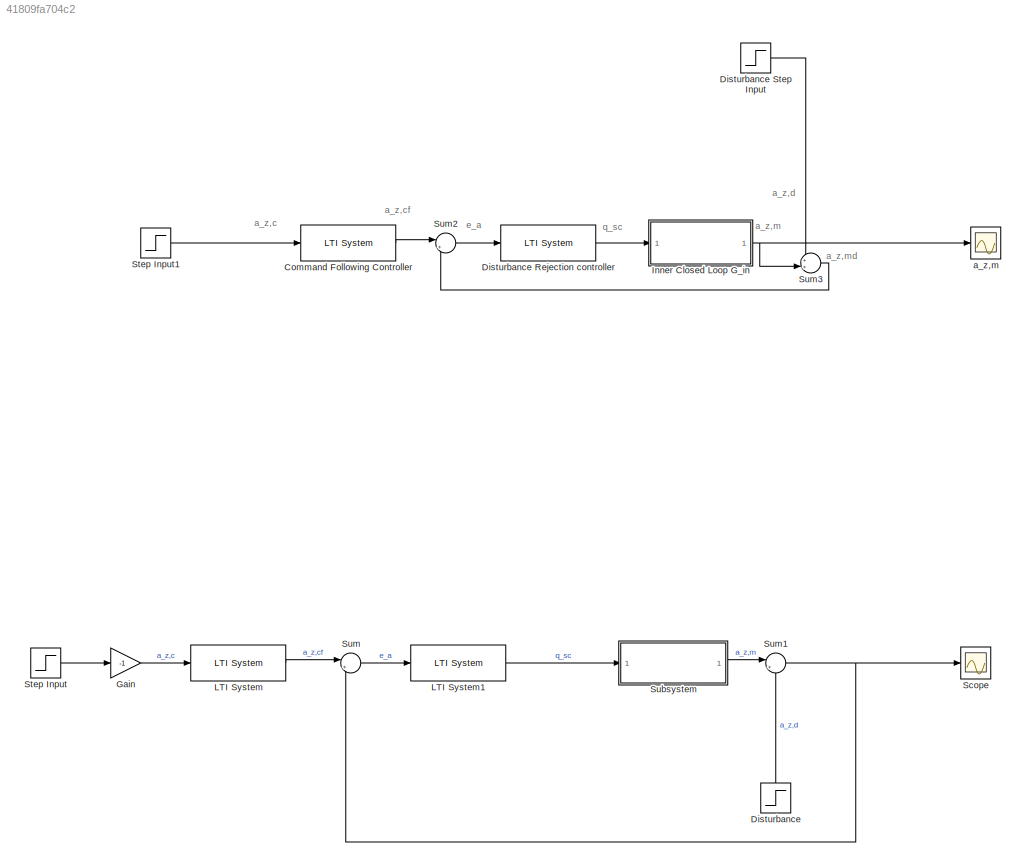
MODEL slx_41809fa704c2
KIND model
CONFIG AbsTol = auto
CONFIG EnableMultiTasking = off
CONFIG FixedStep = auto
CONFIG MaxStep = auto
CONFIG MinStep = auto
CONFIG RelTol = 1e-3
CONFIG SampleTimeConstraint = Unconstrained
CONFIG SolverName = VariableStepAuto
CONFIG StartTime = 0.0
CONFIG StopTime = 10.0
BLOCK [Reference] Command Following Controller  REF=cstblocks/LTI System
  Ports = [1, 1]
  SourceBlock = cstblocks/LTI System
  SourceProductBaseCode = CT
  SourceType = LTI Block
BLOCK [Step] Disturbance
  Commented = on
  NameLocation = right
  SampleTime = 0
BLOCK [Reference] Disturbance Rejection controller  REF=cstblocks/LTI System
  Ports = [1, 1]
  SourceBlock = cstblocks/LTI System
  SourceProductBaseCode = CT
  SourceType = LTI Block
BLOCK [Step] Disturbance Step Input
  After = 0.1
  SampleTime = 0
BLOCK [Gain] Gain
  Commented = on
  Gain = -1
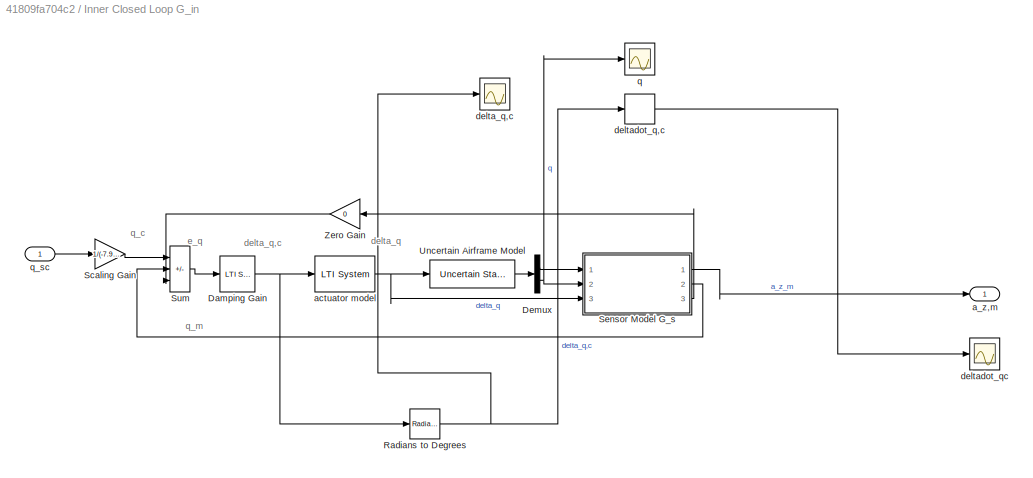
BLOCK [SubSystem] Inner Closed Loop G_in 
  Ports = [1, 1]
  RequestExecContextInheritance = off
BLOCK [Reference] Inner Closed Loop G_in /Damping Gain  REF=cstblocks/LTI System
  Ports = [1, 1]
  SourceBlock = cstblocks/LTI System
  SourceProductBaseCode = CT
  SourceType = LTI Block
BLOCK [Demux] Inner Closed Loop G_in /Demux
  Outputs = 2
  Ports = [1, 2]
BLOCK [Reference] Inner Closed Loop G_in /Radians to Degrees  REF=simulink_extras/Transformations/Radians
to Degrees
  Ports = [1, 1]
  SourceBlock = simulink_extras/Transformations/Radians\nto Degrees
  SourceProductBaseCode = SL
  SourceType = RadiansToDegrees
BLOCK [Gain] Inner Closed Loop G_in /Scaling Gain
  Gain = 1/(-7.9849)
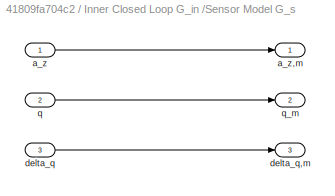
BLOCK [SubSystem] Inner Closed Loop G_in /Sensor Model G_s
  Ports = [3, 3]
  RequestExecContextInheritance = off
BLOCK [Inport] Inner Closed Loop G_in /Sensor Model G_s/a_z
BLOCK [Outport] Inner Closed Loop G_in /Sensor Model G_s/a_z,m
  VectorParamsAs1DForOutWhenUnconnected = off
BLOCK [Inport] Inner Closed Loop G_in /Sensor Model G_s/delta_q
  Port = 3
BLOCK [Outport] Inner Closed Loop G_in /Sensor Model G_s/delta_q,m
  Port = 3
  VectorParamsAs1DForOutWhenUnconnected = off
BLOCK [Inport] Inner Closed Loop G_in /Sensor Model G_s/q
  Port = 2
BLOCK [Outport] Inner Closed Loop G_in /Sensor Model G_s/q_m
  Port = 2
  VectorParamsAs1DForOutWhenUnconnected = off
BLOCK [Sum] Inner Closed Loop G_in /Sum
  IconShape = rectangular
  Inputs = +-+
  Ports = [3, 1]
BLOCK [Reference] Inner Closed Loop G_in /Uncertain Airframe Model  REF=RCTblocks/Uncertain State Space
  Ports = [1, 1]
  SourceBlock = RCTblocks/Uncertain State Space
  SourceProductBaseCode = RC
  SourceType = Uncertain State Space Block
  Tag = USS
BLOCK [Gain] Inner Closed Loop G_in /Zero Gain 
  Gain = 0
  NameLocation = top
BLOCK [Outport] Inner Closed Loop G_in /a_z,m
  VectorParamsAs1DForOutWhenUnconnected = off
BLOCK [Reference] Inner Closed Loop G_in /actuator model  REF=cstblocks/LTI System
  Ports = [1, 1]
  SourceBlock = cstblocks/LTI System
  SourceProductBaseCode = CT
  SourceType = LTI Block
BLOCK [Scope] Inner Closed Loop G_in /delta_q,c
  Floating = off
  NumInputPorts = 1
  Ports = [1]
  ScopeSpecificationString = Simulink.scopes.TimeScopeBlockCfg('CurrentConfiguration', extmgr.ConfigurationSet(extmgr.Configuration('Core','General UI',true),extmgr.Configuration('Core','Source UI',true),extmgr.Configuration('Sources','WiredSimulink',true,'DataLoggingVariableName','ScopeData2','DataLogging',true,'DataLoggingSaveFormat','Array'),extmgr.Configuration('Visuals','Time Domain',true,'SerializedDisplays',{struct('Mi...<+1474ch>
BLOCK [Derivative] Inner Closed Loop G_in /deltadot_q,c
BLOCK [Scope] Inner Closed Loop G_in /deltadot_qc
  Floating = off
  NumInputPorts = 1
  Ports = [1]
  ScopeSpecificationString = Simulink.scopes.TimeScopeBlockCfg('CurrentConfiguration', extmgr.ConfigurationSet(extmgr.Configuration('Core','General UI',true),extmgr.Configuration('Core','Source UI',true),extmgr.Configuration('Sources','WiredSimulink',true,'DataLoggingVariableName','ScopeData3'),extmgr.Configuration('Visuals','Time Domain',true,'SerializedDisplays',{struct('MinYLimReal','-27163.41021','MaxYLimReal','3018.15669...<+1427ch>
BLOCK [Scope] Inner Closed Loop G_in /q
  Floating = off
  NumInputPorts = 1
  Ports = [1]
  ScopeSpecificationString = Simulink.scopes.TimeScopeBlockCfg('CurrentConfiguration', extmgr.ConfigurationSet(extmgr.Configuration('Core','General UI',true),extmgr.Configuration('Core','Source UI',true),extmgr.Configuration('Sources','WiredSimulink',true,'DataLoggingVariableName','q_log','DataLogging',true,'DataLoggingSaveFormat','Array'),extmgr.Configuration('Visuals','Time Domain',true,'SerializedDisplays',{struct('MinYLim...<+1444ch>
BLOCK [Inport] Inner Closed Loop G_in /q_sc
BLOCK [Reference] LTI System  REF=cstblocks/LTI System
  Commented = on
  Ports = [1, 1]
  SourceBlock = cstblocks/LTI System
  SourceProductBaseCode = CT
  SourceType = LTI Block
BLOCK [Reference] LTI System1  REF=cstblocks/LTI System
  Commented = on
  Ports = [1, 1]
  SourceBlock = cstblocks/LTI System
  SourceProductBaseCode = CT
  SourceType = LTI Block
BLOCK [Scope] Scope
  Commented = on
  Floating = off
  NumInputPorts = 1
  Ports = [1]
  ScopeSpecificationString = Simulink.scopes.TimeScopeBlockCfg('CurrentConfiguration', extmgr.ConfigurationSet(extmgr.Configuration('Core','General UI',true),extmgr.Configuration('Core','Source UI',true),extmgr.Configuration('Sources','WiredSimulink',true),extmgr.Configuration('Visuals','Time Domain',true),extmgr.Configuration('Tools','Plot Navigation',true),extmgr.Configuration('Tools','Measurements',true)),'Version','2021b'...<+1ch>
BLOCK [Step] Step Input
  Commented = on
  SampleTime = 0
BLOCK [Step] Step Input1
  After = -1
  SampleTime = 0
  Time = 0
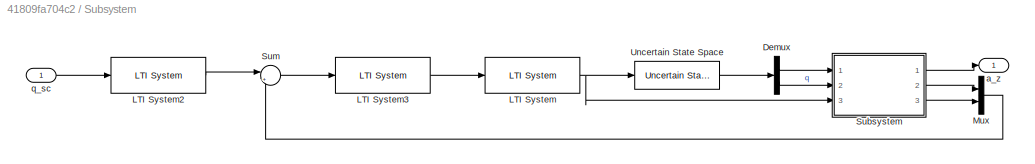
BLOCK [SubSystem] Subsystem
  Commented = on
  Ports = [1, 1]
  RequestExecContextInheritance = off
BLOCK [Demux] Subsystem/Demux
  Outputs = 2
  Ports = [1, 2]
BLOCK [Reference] Subsystem/LTI System  REF=cstblocks/LTI System
  Ports = [1, 1]
  SourceBlock = cstblocks/LTI System
  SourceProductBaseCode = CT
  SourceType = LTI Block
BLOCK [Reference] Subsystem/LTI System2  REF=cstblocks/LTI System
  Ports = [1, 1]
  SourceBlock = cstblocks/LTI System
  SourceProductBaseCode = CT
  SourceType = LTI Block
BLOCK [Reference] Subsystem/LTI System3  REF=cstblocks/LTI System
  Ports = [1, 1]
  SourceBlock = cstblocks/LTI System
  SourceProductBaseCode = CT
  SourceType = LTI Block
BLOCK [Mux] Subsystem/Mux
  DisplayOption = bar
  Inputs = 2
  Ports = [2, 1]
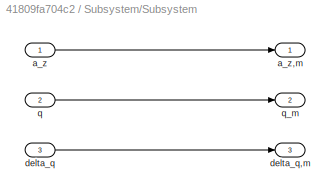
BLOCK [SubSystem] Subsystem/Subsystem
  Ports = [3, 3]
  RequestExecContextInheritance = off
BLOCK [Inport] Subsystem/Subsystem/a_z
BLOCK [Outport] Subsystem/Subsystem/a_z,m
BLOCK [Inport] Subsystem/Subsystem/delta_q
  Port = 3
BLOCK [Outport] Subsystem/Subsystem/delta_q,m
  Port = 3
BLOCK [Inport] Subsystem/Subsystem/q
  Port = 2
BLOCK [Outport] Subsystem/Subsystem/q_m
  Port = 2
BLOCK [Sum] Subsystem/Sum
  Inputs = |+-
  Ports = [2, 1]
BLOCK [Reference] Subsystem/Uncertain State Space  REF=RCTblocks/Uncertain State Space
  Ports = [1, 1]
  SourceBlock = RCTblocks/Uncertain State Space
  SourceProductBaseCode = RC
  SourceType = Uncertain State Space Block
  Tag = USS
BLOCK [Outport] Subsystem/a_z
BLOCK [Inport] Subsystem/q_sc
BLOCK [Sum] Sum
  Commented = on
  Inputs = |+-
  Ports = [2, 1]
BLOCK [Sum] Sum1
  Commented = on
  Inputs = |++
  Ports = [2, 1]
BLOCK [Sum] Sum2
  Inputs = |+-
  Ports = [2, 1]
BLOCK [Sum] Sum3
  Inputs = ++|
  Ports = [2, 1]
BLOCK [Scope] a_z,m
  Floating = off
  NumInputPorts = 1
  Ports = [1]
  ScopeSpecificationString = Simulink.scopes.TimeScopeBlockCfg('CurrentConfiguration', extmgr.ConfigurationSet(extmgr.Configuration('Core','General UI',true),extmgr.Configuration('Core','Source UI',true),extmgr.Configuration('Sources','WiredSimulink',true,'DataLoggingVariableName','ScopeData1'),extmgr.Configuration('Visuals','Time Domain',true,'SerializedDisplays',{struct('MinYLimReal','-25967.54671','MaxYLimReal','2885.2978'...<+1408ch>
ANNOTATION (root): a_z,c
ANNOTATION (root): a_z,cf
ANNOTATION (root): a_z,d
ANNOTATION (root): a_z,m
ANNOTATION (root): a_z,md
ANNOTATION (root): e_a
ANNOTATION (root): q_sc
ANNOTATION Inner Closed Loop G_in : delta_q
ANNOTATION Inner Closed Loop G_in : delta_q,c
ANNOTATION Inner Closed Loop G_in : e_q
ANNOTATION Inner Closed Loop G_in : q_c
ANNOTATION Inner Closed Loop G_in : q_m
LINE Command Following Controller:1 -> Sum2:1
LINE Disturbance Rejection controller:1 -> Inner Closed Loop G_in :1
LINE Disturbance Step Input:1 -> Sum3:1
LINE Disturbance:1 -> Sum1:2
LINE Gain:1 -> LTI System:1
NET Inner Closed Loop G_in /Damping Gain:1 -> Inner Closed Loop G_in /Radians to Degrees:1, Inner Closed Loop G_in /actuator model:1
LINE Inner Closed Loop G_in /Demux:1 -> Inner Closed Loop G_in /Sensor Model G_s:1
NET Inner Closed Loop G_in /Demux:2 -> Inner Closed Loop G_in /Sensor Model G_s:2, Inner Closed Loop G_in /q:1
NET Inner Closed Loop G_in /Radians to Degrees:1 -> Inner Closed Loop G_in /delta_q,c:1, Inner Closed Loop G_in /deltadot_q,c:1
LINE Inner Closed Loop G_in /Scaling Gain:1 -> Inner Closed Loop G_in /Sum:1
LINE Inner Closed Loop G_in /Sensor Model G_s/a_z:1 -> Inner Closed Loop G_in /Sensor Model G_s/a_z,m:1
LINE Inner Closed Loop G_in /Sensor Model G_s/delta_q:1 -> Inner Closed Loop G_in /Sensor Model G_s/delta_q,m:1
LINE Inner Closed Loop G_in /Sensor Model G_s/q:1 -> Inner Closed Loop G_in /Sensor Model G_s/q_m:1
LINE Inner Closed Loop G_in /Sensor Model G_s:1 -> Inner Closed Loop G_in /a_z,m:1
LINE Inner Closed Loop G_in /Sensor Model G_s:2 -> Inner Closed Loop G_in /Sum:2
LINE Inner Closed Loop G_in /Sensor Model G_s:3 -> Inner Closed Loop G_in /Zero Gain :1
LINE Inner Closed Loop G_in /Sum:1 -> Inner Closed Loop G_in /Damping Gain:1
LINE Inner Closed Loop G_in /Uncertain Airframe Model:1 -> Inner Closed Loop G_in /Demux:1
LINE Inner Closed Loop G_in /Zero Gain :1 -> Inner Closed Loop G_in /Sum:3
NET Inner Closed Loop G_in /actuator model:1 -> Inner Closed Loop G_in /Sensor Model G_s:3, Inner Closed Loop G_in /Uncertain Airframe Model:1
LINE Inner Closed Loop G_in /deltadot_q,c:1 -> Inner Closed Loop G_in /deltadot_qc:1
LINE Inner Closed Loop G_in /q_sc:1 -> Inner Closed Loop G_in /Scaling Gain:1
NET Inner Closed Loop G_in :1 -> Sum3:2, a_z,m:1
LINE LTI System1:1 -> Subsystem:1
LINE LTI System:1 -> Sum:1
LINE Step Input1:1 -> Command Following Controller:1
LINE Step Input:1 -> Gain:1
LINE Subsystem/Demux:1 -> Subsystem/Subsystem:1
LINE Subsystem/Demux:2 -> Subsystem/Subsystem:2
LINE Subsystem/LTI System2:1 -> Subsystem/Sum:1
LINE Subsystem/LTI System3:1 -> Subsystem/LTI System:1
NET Subsystem/LTI System:1 -> Subsystem/Subsystem:3, Subsystem/Uncertain State Space:1
LINE Subsystem/Mux:1 -> Subsystem/Sum:2
LINE Subsystem/Subsystem/a_z:1 -> Subsystem/Subsystem/a_z,m:1
LINE Subsystem/Subsystem/delta_q:1 -> Subsystem/Subsystem/delta_q,m:1
LINE Subsystem/Subsystem/q:1 -> Subsystem/Subsystem/q_m:1
LINE Subsystem/Subsystem:1 -> Subsystem/a_z:1
LINE Subsystem/Subsystem:2 -> Subsystem/Mux:1
LINE Subsystem/Subsystem:3 -> Subsystem/Mux:2
LINE Subsystem/Sum:1 -> Subsystem/LTI System3:1
LINE Subsystem/Uncertain State Space:1 -> Subsystem/Demux:1
LINE Subsystem/q_sc:1 -> Subsystem/LTI System2:1
LINE Subsystem:1 -> Sum1:1
NET Sum1:1 -> Scope:1, Sum:2
LINE Sum2:1 -> Disturbance Rejection controller:1
LINE Sum3:1 -> Sum2:2
LINE Sum:1 -> LTI System1:1
note: NET lines group one-source signal fan-out (src -> all destinations, sorted); 1:1 wires keep LINE
